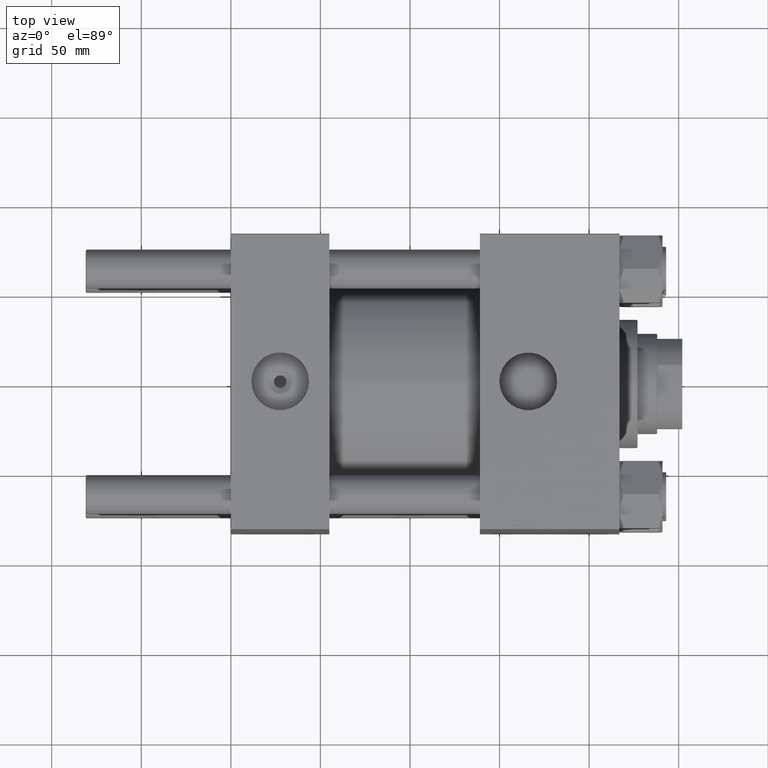
[diagram: clean part render]
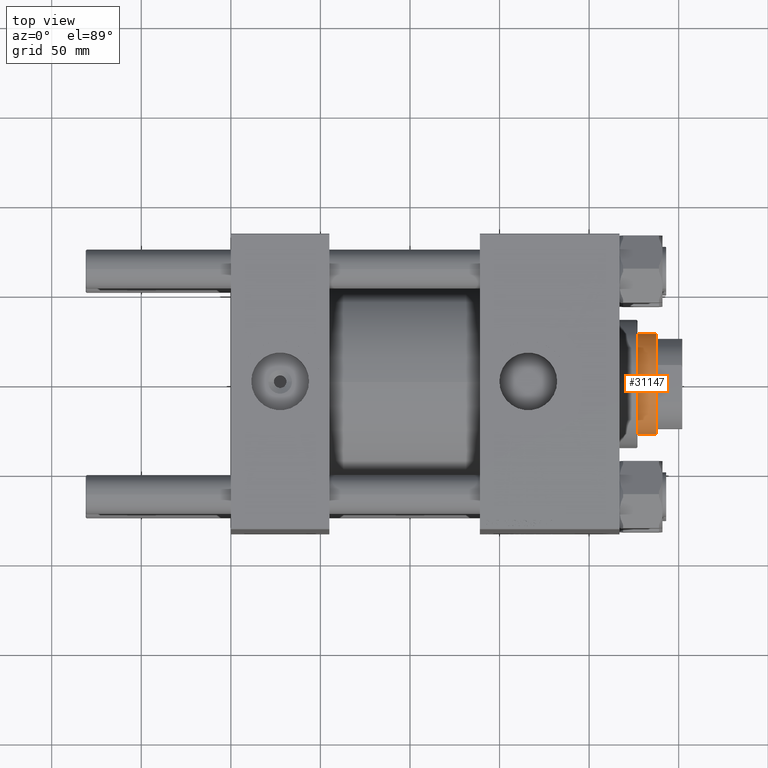
[diagram: same view with one face highlighted and labeled with its STEP entity id]
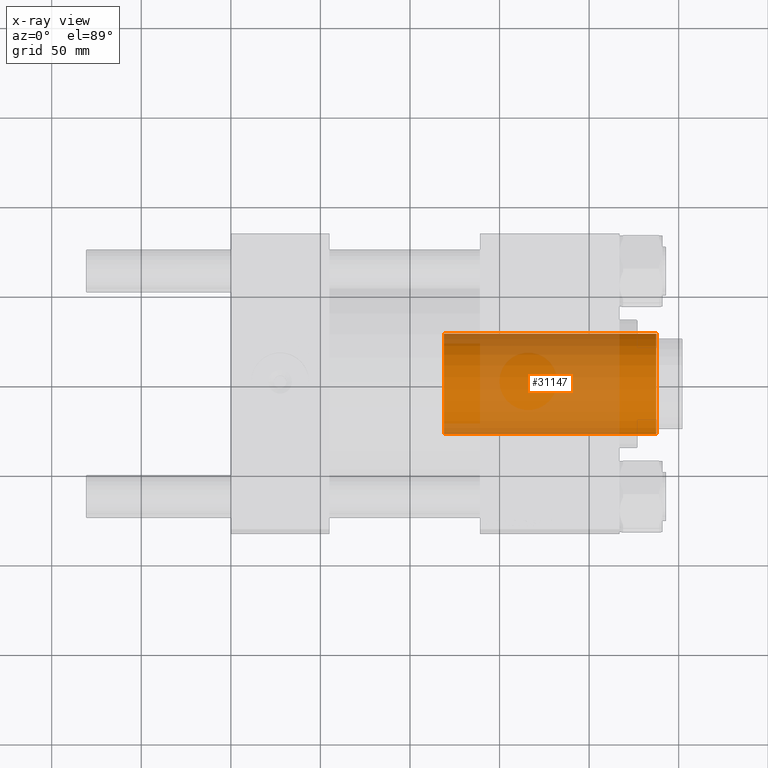
[diagram: x-ray of the same camera — body ghosted, the highlighted face saturated]
A machine part, top view. The second image highlights one B-rep face of the part: STEP entity #31147.
The next image is the same camera in x-ray: the body ghosted, the highlighted face saturated — about 57% of this face is hidden behind the body in this view.
In plain terms, the highlighted cylindrical surface (partial cylindrical patch) has radius 28 mm, axis along (-1, 0, 0).
Its self-contained STEP definition (entity closure, byte-faithful):
#834 = CARTESIAN_POINT ( 'NONE',  ( 0.000000000000000000, 0.000000000000000000, 182.4999999999999716 ) ) ;
#1585 = DIRECTION ( 'NONE',  ( 0.000000000000000000, 0.000000000000000000, -1.000000000000000000 ) ) ;
#1611 = EDGE_CURVE ( 'NONE', #24426, #35921, #41844, .T. ) ;
#2176 = DIRECTION ( 'NONE',  ( -0.000000000000000000, -0.000000000000000000, -1.000000000000000000 ) ) ;
#5373 = DIRECTION ( 'NONE',  ( -1.000000000000000000, 0.000000000000000000, 0.000000000000000000 ) ) ;
#5612 = VERTEX_POINT ( 'NONE', #44133 ) ;
#6488 = CARTESIAN_POINT ( 'NONE',  ( 28.00000000000000000, 3.429011037612589276E-15, 183.0000000000000000 ) ) ;
#9053 = EDGE_LOOP ( 'NONE', ( #30976, #49969, #31749, #38146 ) ) ;
#12793 = DIRECTION ( 'NONE',  ( 1.000000000000000000, 0.000000000000000000, 0.000000000000000000 ) ) ;
#17307 = CYLINDRICAL_SURFACE ( 'NONE', #46276, 28.00000000000000000 ) ;
#19561 = EDGE_CURVE ( 'NONE', #42963, #5612, #45748, .T. ) ;
#20086 = CARTESIAN_POINT ( 'NONE',  ( 0.000000000000000000, 0.000000000000000000, 64.00000000000000000 ) ) ;
#22587 = CARTESIAN_POINT ( 'NONE',  ( -28.00000000000000000, 0.000000000000000000, 183.0000000000000000 ) ) ;
#22840 = DIRECTION ( 'NONE',  ( -0.000000000000000000, -0.000000000000000000, -1.000000000000000000 ) ) ;
#23908 = DIRECTION ( 'NONE',  ( 1.000000000000000000, 0.000000000000000000, 0.000000000000000000 ) ) ;
#23989 = CARTESIAN_POINT ( 'NONE',  ( 28.00000000000000000, 3.429011037612589276E-15, 64.00000000000000000 ) ) ;
#24426 = VERTEX_POINT ( 'NONE', #29837 ) ;
#26605 = CIRCLE ( 'NONE', #45323, 28.00000000000000000 ) ;
#27028 = CARTESIAN_POINT ( 'NONE',  ( -28.00000000000000000, 0.000000000000000000, 182.4999999999999716 ) ) ;
#27600 = EDGE_CURVE ( 'NONE', #5612, #35921, #26605, .T. ) ;
#29240 = CARTESIAN_POINT ( 'NONE',  ( 0.000000000000000000, 0.000000000000000000, 183.0000000000000000 ) ) ;
#29837 = CARTESIAN_POINT ( 'NONE',  ( 28.00000000000000000, 3.429011037612589276E-15, 182.4999999999999716 ) ) ;
#30976 = ORIENTED_EDGE ( 'NONE', *, *, #1611, .F. ) ;
#31093 = AXIS2_PLACEMENT_3D ( 'NONE', #834, #1585, #12793 ) ;
#31147 = ADVANCED_FACE ( 'NONE', ( #40964 ), #17307, .T. ) ;
#31749 = ORIENTED_EDGE ( 'NONE', *, *, #19561, .T. ) ;
#35113 = DIRECTION ( 'NONE',  ( 0.000000000000000000, 0.000000000000000000, 1.000000000000000000 ) ) ;
#35921 = VERTEX_POINT ( 'NONE', #23989 ) ;
#38146 = ORIENTED_EDGE ( 'NONE', *, *, #27600, .T. ) ;
#39716 = VECTOR ( 'NONE', #2176, 1000.000000000000000 ) ;
#40032 = CIRCLE ( 'NONE', #31093, 28.00000000000000000 ) ;
#40964 = FACE_OUTER_BOUND ( 'NONE', #9053, .T. ) ;
#41844 = LINE ( 'NONE', #6488, #39716 ) ;
#42963 = VERTEX_POINT ( 'NONE', #27028 ) ;
#43085 = EDGE_CURVE ( 'NONE', #24426, #42963, #40032, .T. ) ;
#44133 = CARTESIAN_POINT ( 'NONE',  ( -28.00000000000000000, 0.000000000000000000, 64.00000000000000000 ) ) ;
#45323 = AXIS2_PLACEMENT_3D ( 'NONE', #20086, #35113, #23908 ) ;
#45748 = LINE ( 'NONE', #22587, #46694 ) ;
#46276 = AXIS2_PLACEMENT_3D ( 'NONE', #29240, #48593, #5373 ) ;
#46694 = VECTOR ( 'NONE', #22840, 1000.000000000000000 ) ;
#48593 = DIRECTION ( 'NONE',  ( -0.000000000000000000, -0.000000000000000000, -1.000000000000000000 ) ) ;
#49969 = ORIENTED_EDGE ( 'NONE', *, *, #43085, .T. ) ;